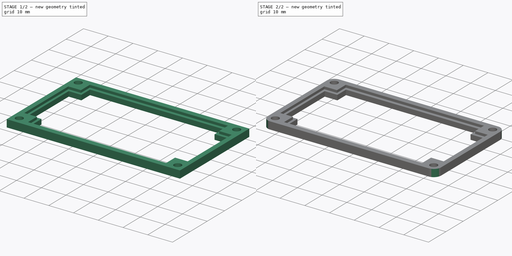
[diagram: build sequence overview — one tinted view per stage of 2, left to right]
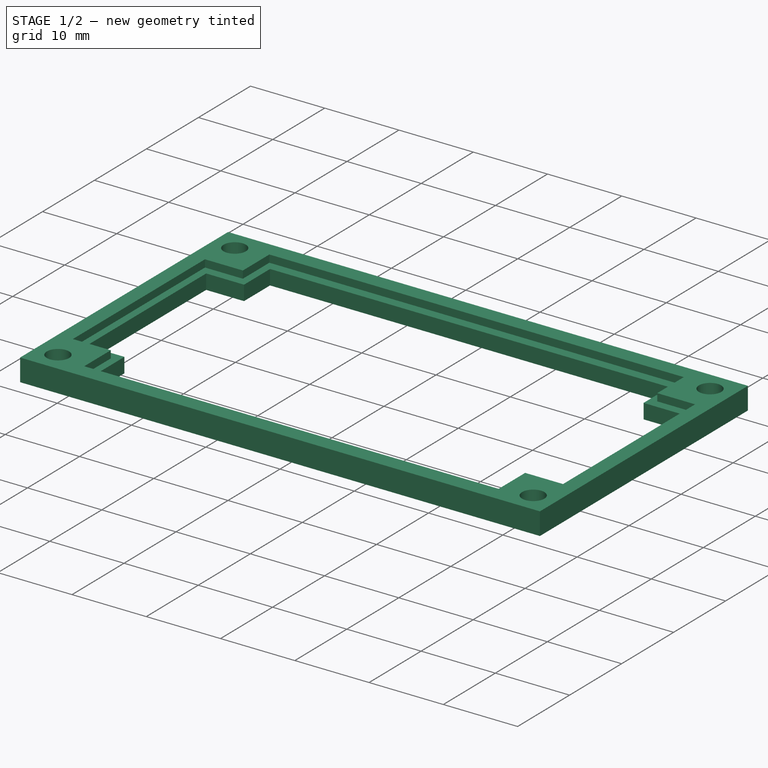
[diagram: stage 1 of 2 — iso view after this stage's code; geometry added in this stage tinted green]
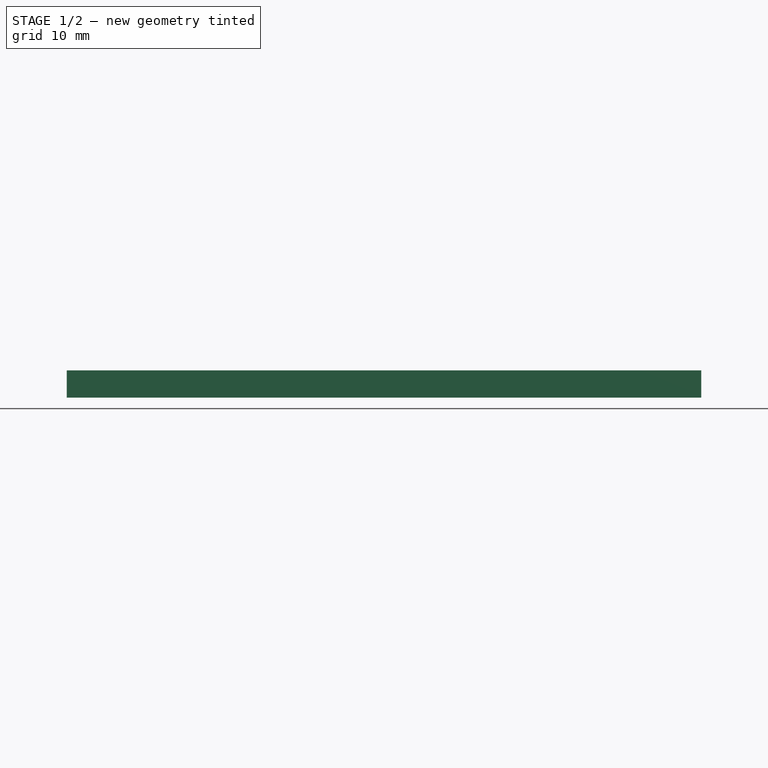
[diagram: stage 1 of 2 — front view after this stage's code; geometry added in this stage tinted green]
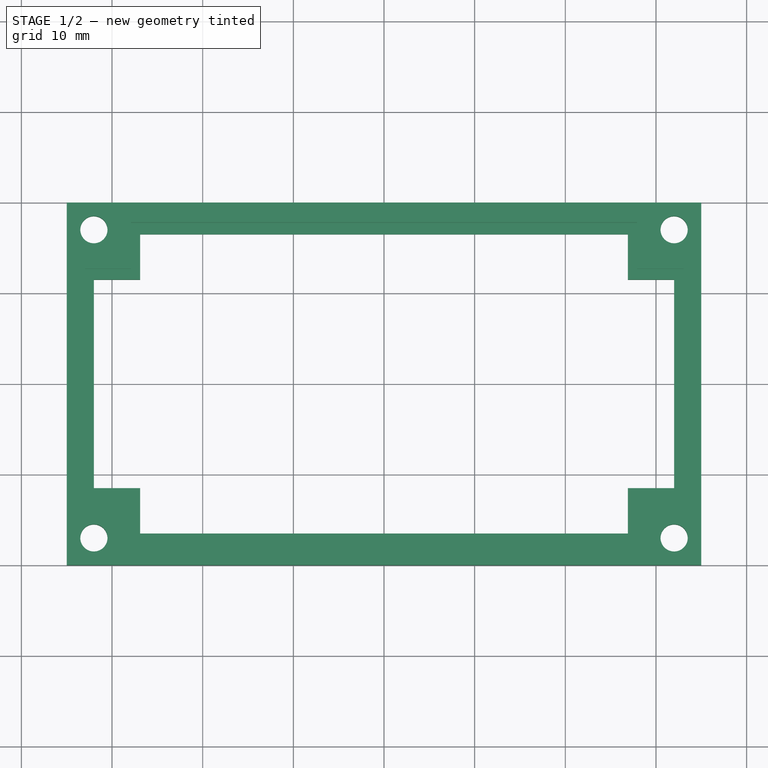
[diagram: stage 1 of 2 — top view after this stage's code; geometry added in this stage tinted green]
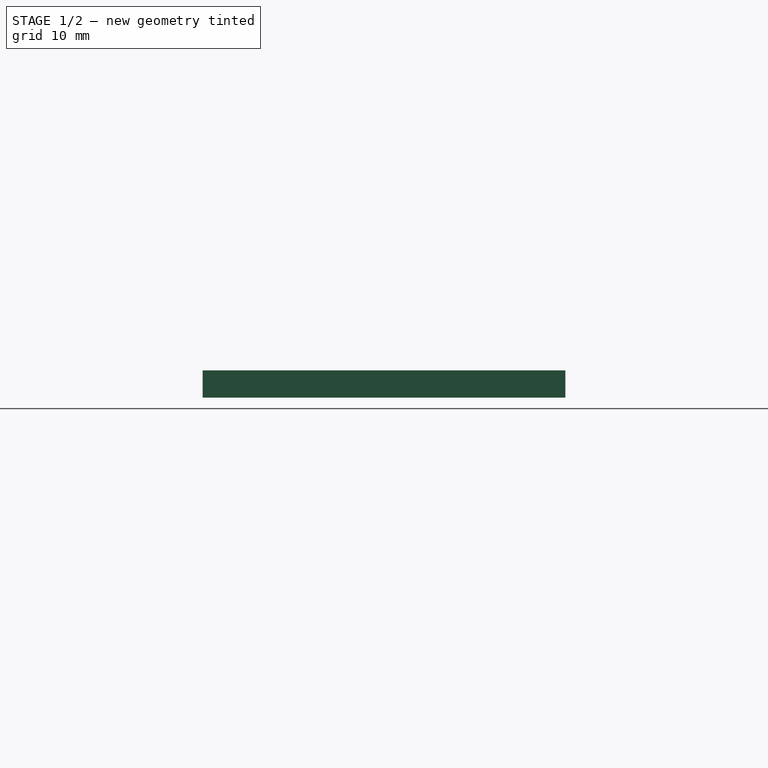
[diagram: stage 1 of 2 — right view after this stage's code; geometry added in this stage tinted green]
FCSTD DOCUMENT  (FreeCAD 0.16R6707 (Git))
Label: LRP_Generic_Mount
License: All rights reserved
LicenseURL: http://en.wikipedia.org/wiki/All_rights_reserved
objects: Sketcher::SketchObject×2, PartDesign::Pad×1, PartDesign::Pocket×1, PartDesign::Fillet×1
note: 7 computed .brp shape members not serialized (recipe doc carries the construction recipe); baked Part::Feature solids carry a one-line shape summary decoded from their .brp

FEATURE [Sketcher::SketchObject] Sketch
  sketch-geometry (25):
    g0: LineSegment StartX=-35 StartY=-20 StartZ=0 EndX=35 EndY=-20 EndZ=0
    g1: LineSegment StartX=35 StartY=-20 StartZ=0 EndX=35 EndY=20 EndZ=0
    g2: LineSegment StartX=35 StartY=20 StartZ=0 EndX=-35 EndY=20 EndZ=0
    g3: LineSegment StartX=-35 StartY=20 StartZ=0 EndX=-35 EndY=-20 EndZ=0
    g4: Circle [constr] CenterX=-32 CenterY=17 CenterZ=0 NormalX=0 NormalY=0 NormalZ=1 Radius=3
    g5: Circle CenterX=-32 CenterY=17 CenterZ=0 NormalX=0 NormalY=0 NormalZ=1 Radius=1.5
    g6: Circle CenterX=-32 CenterY=-17 CenterZ=0 NormalX=0 NormalY=0 NormalZ=1 Radius=1.5
    g7: Circle CenterX=32 CenterY=-17 CenterZ=0 NormalX=0 NormalY=0 NormalZ=1 Radius=1.5
    g8: Circle CenterX=32 CenterY=17 CenterZ=0 NormalX=0 NormalY=0 NormalZ=1 Radius=1.5
    g9: LineSegment StartX=-32 StartY=11.5 StartZ=0 EndX=-32 EndY=-11.5 EndZ=0
    g10: LineSegment StartX=-26.9 StartY=-16.5 StartZ=0 EndX=26.9 EndY=-16.5 EndZ=0
    g11: LineSegment StartX=32 StartY=-11.5 StartZ=0 EndX=32 EndY=11.5 EndZ=0
    g12: LineSegment StartX=26.9 StartY=16.5 StartZ=0 EndX=-26.9 EndY=16.5 EndZ=0
    g13: LineSegment StartX=-32 StartY=11.5 StartZ=0 EndX=-26.9 EndY=11.5 EndZ=0
    g14: LineSegment StartX=-26.9 StartY=11.5 StartZ=0 EndX=-26.9 EndY=16.5 EndZ=0
    g15: LineSegment StartX=26.9 StartY=16.5 StartZ=0 EndX=26.9 EndY=11.5 EndZ=0
    g16: LineSegment StartX=26.9 StartY=11.5 StartZ=0 EndX=32 EndY=11.5 EndZ=0
    g17: LineSegment StartX=32 StartY=-11.5 StartZ=0 EndX=26.9 EndY=-11.5 EndZ=0
    g18: LineSegment StartX=26.9 StartY=-11.5 StartZ=0 EndX=26.9 EndY=-16.5 EndZ=0
    g19: LineSegment StartX=-32 StartY=-11.5 StartZ=0 EndX=-26.9 EndY=-11.5 EndZ=0
    g20: LineSegment StartX=-26.9 StartY=-11.5 StartZ=0 EndX=-26.9 EndY=-16.5 EndZ=0
    g21: LineSegment [constr] StartX=-32 StartY=-16.5 StartZ=0 EndX=32 EndY=-16.5 EndZ=0
    g22: LineSegment [constr] StartX=32 StartY=-16.5 StartZ=0 EndX=32 EndY=16.5 EndZ=0
    g23: LineSegment [constr] StartX=32 StartY=16.5 StartZ=0 EndX=-32 EndY=16.5 EndZ=0
    g24: LineSegment [constr] StartX=-32 StartY=16.5 StartZ=0 EndX=-32 EndY=-16.5 EndZ=0
  constraints (69):
    c: Coincident(g0,g1)
    c: Coincident(g1,g2)
    c: Coincident(g2,g3)
    c: Coincident(g3,g0)
    c: Horizontal(g0)
    c: Horizontal(g2)
    c: Vertical(g1)
    c: Vertical(g3)
    c: Distance(g3) = 40
    c: Distance(g2) = 70
    c: Symmetric(g0,g1,g-1)
    c: Tangent(g4,g2)
    c: Tangent(g4,g3)
    c: Radius(g4) = 3
    c: Coincident(g5,g4)
    c: Radius(g5) = 1.5
    c: Equal(g8,g7)
    c: Equal(g7,g6)
    c: Equal(g6,g5)
    c: Symmetric(g8,g4,g-2)
    c: Symmetric(g6,g4,g-1)
    c: Symmetric(g6,g7,g-2)
    c: Vertical(g9)
    c: Horizontal(g10)
    c: Vertical(g11)
    c: Horizontal(g12)
    c: Coincident(g9,g13)
    c: Horizontal(g13)
    c: Coincident(g13,g14)
    c: Vertical(g14)
    c: Coincident(g12,g14)
    c: Coincident(g12,g15)
    c: Vertical(g15)
    c: Coincident(g15,g16)
    c: Coincident(g16,g11)
    c: Horizontal(g16)
    c: Coincident(g11,g17)
    c: Horizontal(g17)
    c: Coincident(g17,g18)
    c: Vertical(g18)
    c: Coincident(g18,g10)
    c: Coincident(g9,g19)
    c: Horizontal(g19)
    c: Coincident(g19,g20)
    c: Coincident(g20,g10)
    c: Vertical(g20)
    c: Equal(g14,g15)
    c: Equal(g13,g16)
    c: Coincident(g21,g22)
    c: Coincident(g22,g23)
    c: Coincident(g23,g24)
    c: Coincident(g24,g21)
    c: Horizontal(g21)
    c: Horizontal(g23)
    c: Vertical(g22)
    c: Vertical(g24)
    c: Symmetric(g21,g22,g-1)
    c: Distance(g21) = 64
    c: Distance(g22) = 33
    c: Equal(g18,g15)
    c: PointOnObject(g10,g21)
    c: PointOnObject(g11,g22)
    c: Equal(g20,g14)
    c: PointOnObject(g9,g24)
    c: PointOnObject(g12,g23)
    c: Distance(g13,g15) = 53.8
    c: Equal(g19,g17)
    c: Equal(g17,g13)
    c: Distance(g9) = 23
FEATURE [PartDesign::Pad] Pad
  Length = 3
  Length2 = 100
  Sketch = -> Sketch
  Type = 0
FEATURE [Sketcher::SketchObject] Sketch001
  Placement = pos=(0,0,3) rot=(0,0,1;0rad)
  Support = -> Pad [Face22]
  sketch-geometry (16):
    g0: LineSegment [constr] StartX=-33 StartY=-17.8 StartZ=0 EndX=33 EndY=-17.8 EndZ=0
    g1: LineSegment [constr] StartX=33 StartY=-17.8 StartZ=0 EndX=33 EndY=17.8 EndZ=0
    g2: LineSegment [constr] StartX=33 StartY=17.8 StartZ=0 EndX=-33 EndY=17.8 EndZ=0
    g3: LineSegment [constr] StartX=-33 StartY=17.8 StartZ=0 EndX=-33 EndY=-17.8 EndZ=0
    g4: LineSegment StartX=-27.9 StartY=17.8 StartZ=0 EndX=27.9 EndY=17.8 EndZ=0
    g5: LineSegment StartX=27.9 StartY=17.8 StartZ=0 EndX=27.9 EndY=12.7 EndZ=0
    g6: LineSegment StartX=27.9 StartY=12.7 StartZ=0 EndX=33 EndY=12.7 EndZ=0
    g7: LineSegment StartX=33 StartY=12.7 StartZ=0 EndX=33 EndY=-12.7 EndZ=0
    g8: LineSegment StartX=33 StartY=-12.7 StartZ=0 EndX=27.9 EndY=-12.7 EndZ=0
    g9: LineSegment StartX=27.9 StartY=-12.7 StartZ=0 EndX=27.9 EndY=-17.8 EndZ=0
    g10: LineSegment StartX=27.9 StartY=-17.8 StartZ=0 EndX=-27.9 EndY=-17.8 EndZ=0
    g11: LineSegment StartX=-27.9 StartY=-17.8 StartZ=0 EndX=-27.9 EndY=-12.7 EndZ=0
    g12: LineSegment StartX=-27.9 StartY=-12.7 StartZ=0 EndX=-33 EndY=-12.7 EndZ=0
    g13: LineSegment StartX=-33 StartY=-12.7 StartZ=0 EndX=-33 EndY=12.7 EndZ=0
    g14: LineSegment StartX=-33 StartY=12.7 StartZ=0 EndX=-27.9 EndY=12.7 EndZ=0
    g15: LineSegment StartX=-27.9 StartY=12.7 StartZ=0 EndX=-27.9 EndY=17.8 EndZ=0
  constraints (47):
    c: Coincident(g0,g1)
    c: Coincident(g1,g2)
    c: Coincident(g2,g3)
    c: Coincident(g3,g0)
    c: Horizontal(g0)
    c: Horizontal(g2)
    c: Vertical(g1)
    c: Vertical(g3)
    c: Distance(g2) = 66
    c: Distance(g1) = 35.6
    c: Symmetric(g0,g1,g-1)
    c: PointOnObject(g4,g2)
    c: Horizontal(g4)
    c: Coincident(g4,g5)
    c: Vertical(g5)
    c: Coincident(g5,g6)
    c: Horizontal(g6)
    c: Coincident(g6,g7)
    c: Vertical(g7)
    c: Coincident(g7,g8)
    c: Horizontal(g8)
    c: Coincident(g8,g9)
    c: Vertical(g9)
    c: Coincident(g9,g10)
    c: Horizontal(g10)
    c: Coincident(g10,g11)
    c: Vertical(g11)
    c: Coincident(g11,g12)
    c: Horizontal(g12)
    c: Coincident(g12,g13)
    c: Vertical(g13)
    c: Coincident(g13,g14)
    c: Horizontal(g14)
    c: Coincident(g14,g15)
    c: Vertical(g15)
    c: Coincident(g15,g4)
    c: PointOnObject(g13,g3)
    c: PointOnObject(g10,g0)
    c: PointOnObject(g7,g1)
    c: Equal(g11,g9)
    c: Equal(g9,g5)
    c: Equal(g5,g15)
    c: Equal(g14,g12)
    c: Equal(g12,g8)
    c: Equal(g8,g6)
    c: Distance(g12,g13) = 25.4
    c: Distance(g10,g9) = 55.8
FEATURE [PartDesign::Pocket] Pocket
  Length = 1
  Sketch = -> Sketch001
  Type = 0
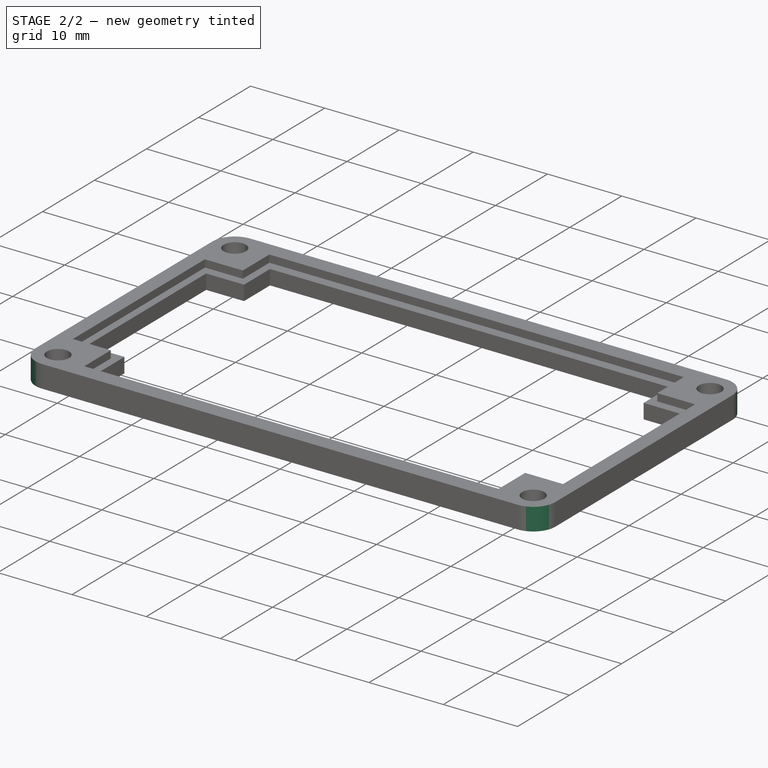
[diagram: stage 2 of 2 — iso view after this stage's code; geometry added in this stage tinted green]
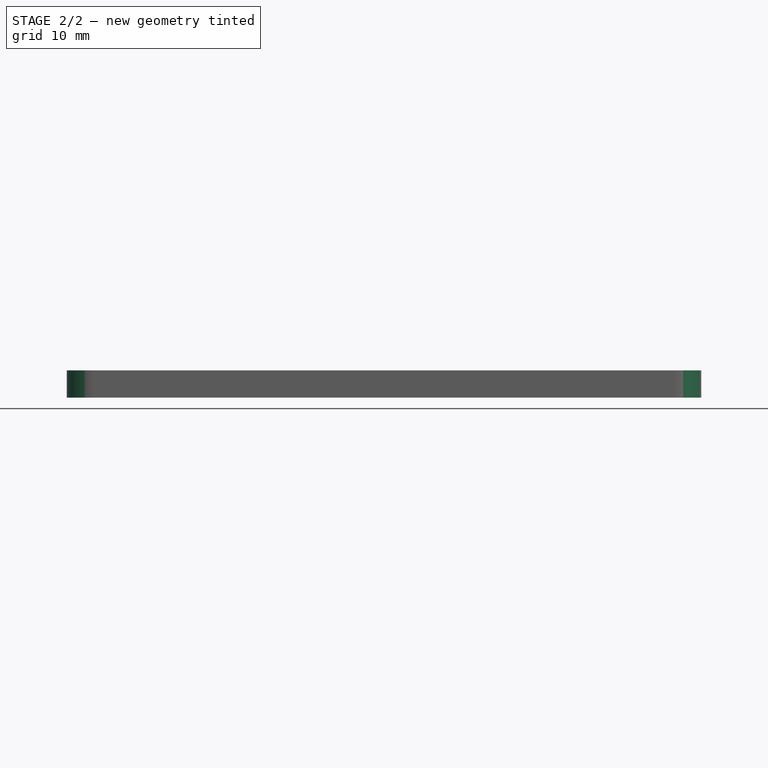
[diagram: stage 2 of 2 — front view after this stage's code; geometry added in this stage tinted green]
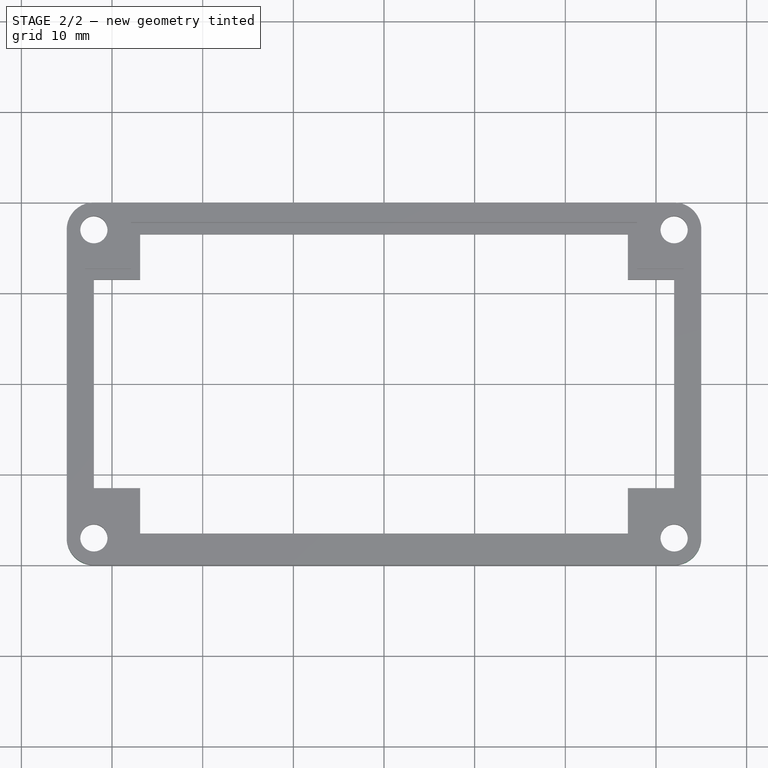
[diagram: stage 2 of 2 — top view after this stage's code; geometry added in this stage tinted green]
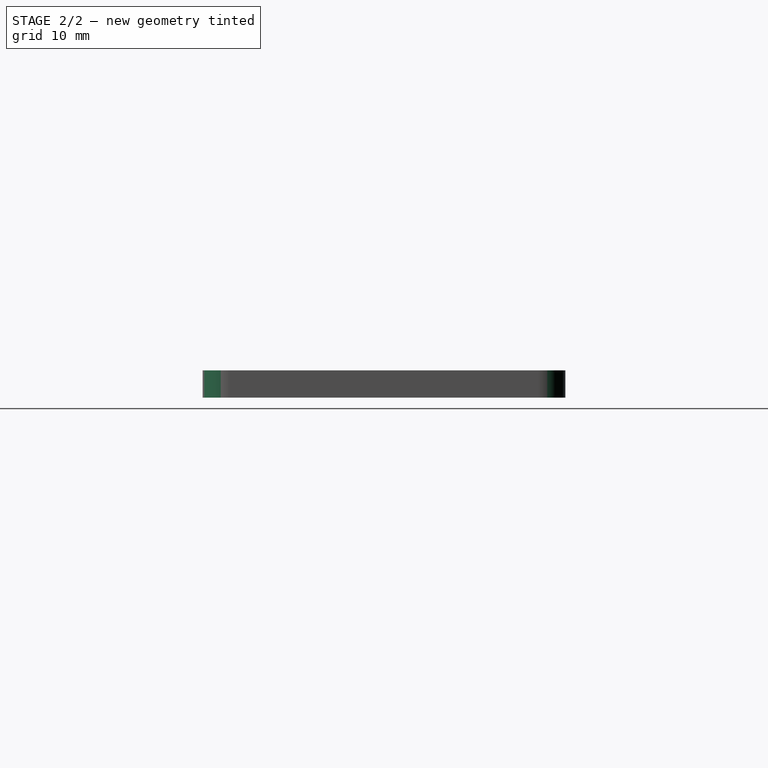
[diagram: stage 2 of 2 — right view after this stage's code; geometry added in this stage tinted green]
FEATURE [PartDesign::Fillet] Fillet
  Base = -> Pocket [Edge2,Edge8,Edge5,Edge1]
  Radius = 3
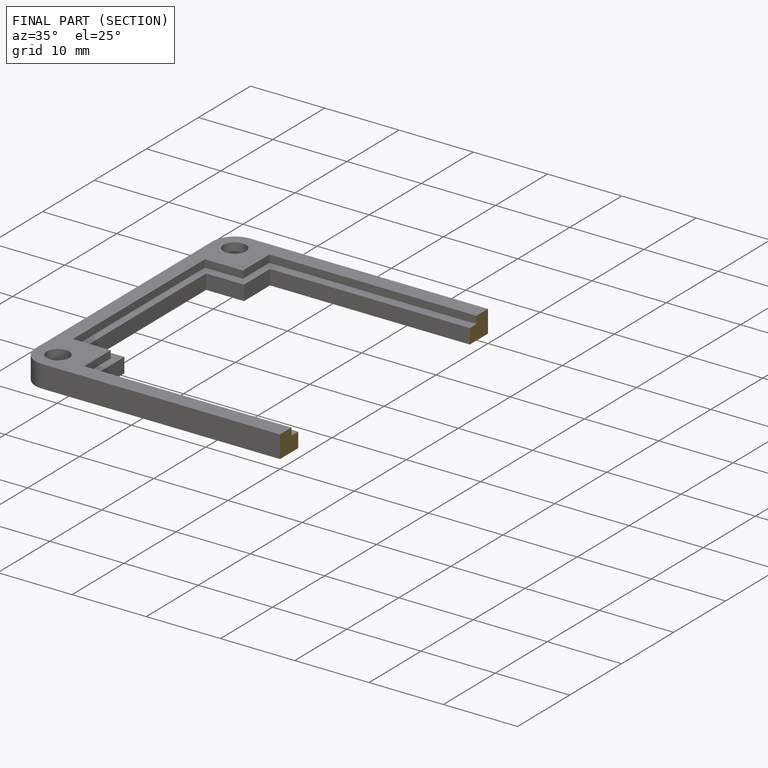
[diagram: finished part — half-section view (interior)]
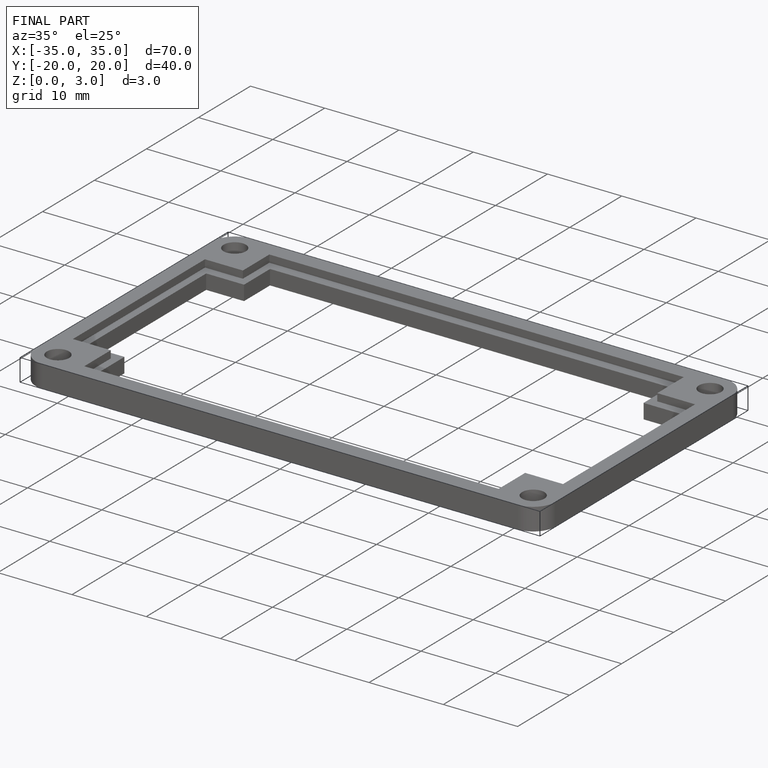
[diagram: finished part — iso view with bounding-box wireframe]
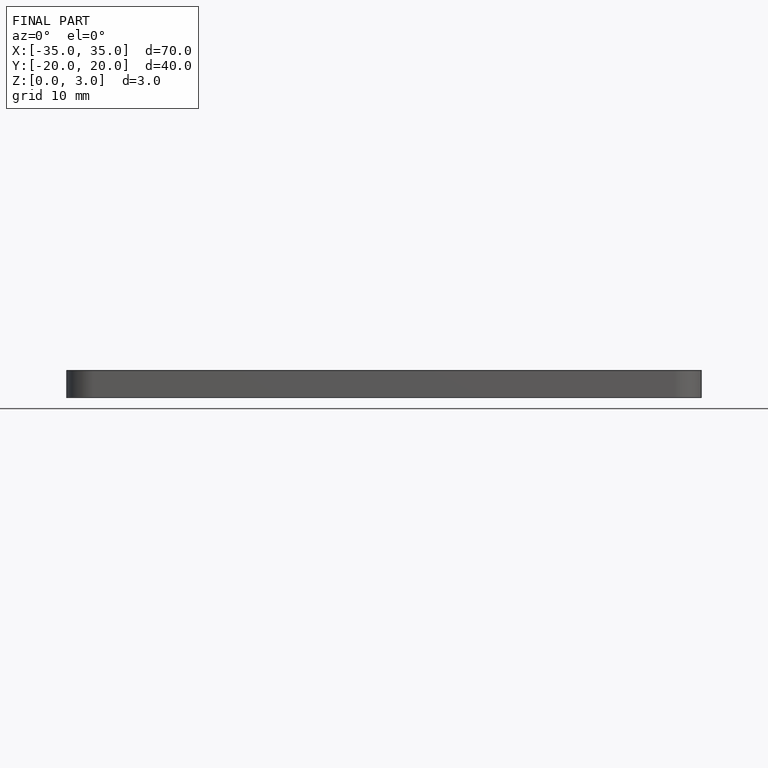
[diagram: finished part — front view with bounding-box wireframe]
